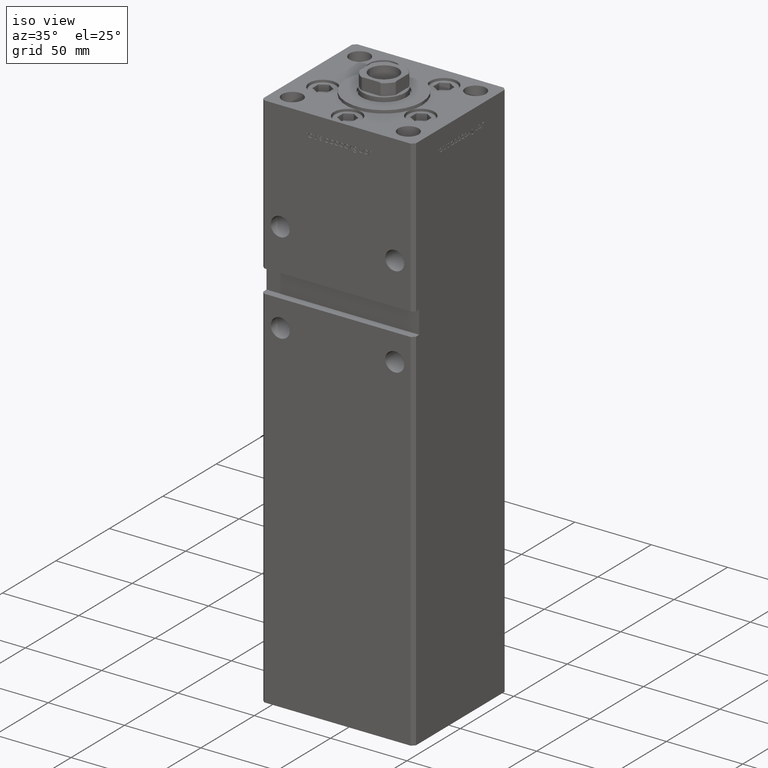
[diagram: clean part render]
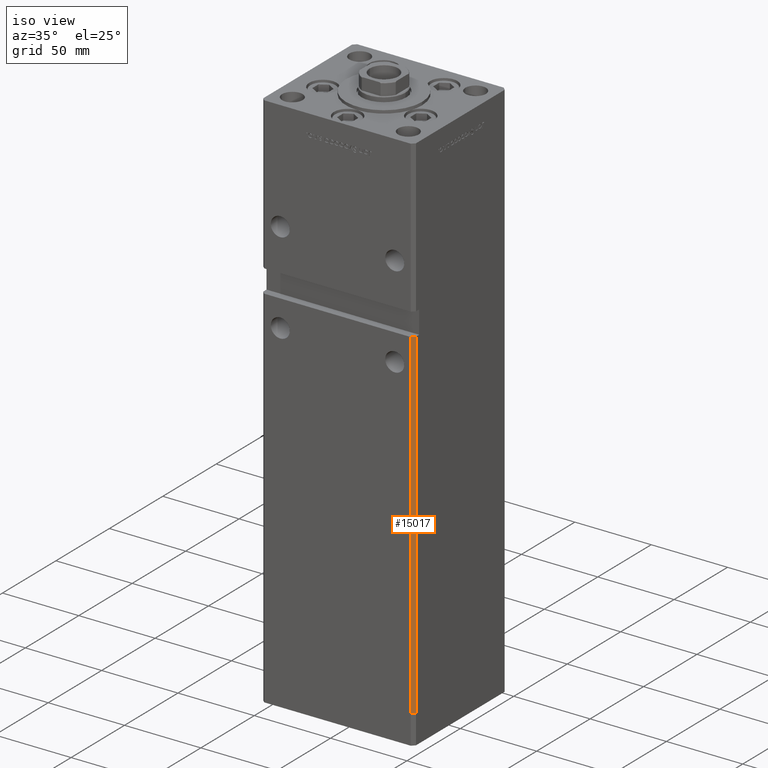
[diagram: same view with one face highlighted and labeled with its STEP entity id]
A machine part, iso view. The second image highlights one B-rep face of the part: STEP entity #15017.
In plain terms, the highlighted planar face has unit normal (0.7071, -0.7071, 0).
Its self-contained STEP definition (entity closure, byte-faithful):
#577 = LINE ( 'NONE', #25080, #8520 ) ;
#666 = DIRECTION ( 'NONE',  ( -0.7071067811865474617, -0.7071067811865474617, 0.000000000000000000 ) ) ;
#1453 = DIRECTION ( 'NONE',  ( 0.7071067811865475727, -0.7071067811865475727, 0.000000000000000000 ) ) ;
#2584 = ORIENTED_EDGE ( 'NONE', *, *, #40795, .F. ) ;
#3902 = EDGE_CURVE ( 'NONE', #37394, #42736, #28679, .T. ) ;
#6145 = LINE ( 'NONE', #44768, #36188 ) ;
#7749 = VERTEX_POINT ( 'NONE', #29216 ) ;
#8520 = VECTOR ( 'NONE', #45475, 1000.000000000000114 ) ;
#8661 = CARTESIAN_POINT ( 'NONE',  ( 49.99999999999998579, -41.49999999999999289, 0.000000000000000000 ) ) ;
#9748 = VECTOR ( 'NONE', #19571, 1000.000000000000000 ) ;
#9784 = PLANE ( 'NONE',  #16134 ) ;
#10048 = FACE_OUTER_BOUND ( 'NONE', #16759, .T. ) ;
#15017 = ADVANCED_FACE ( 'NONE', ( #10048 ), #9784, .T. ) ;
#16134 = AXIS2_PLACEMENT_3D ( 'NONE', #46066, #1453, #29710 ) ;
#16759 = EDGE_LOOP ( 'NONE', ( #23802, #28380, #49755, #2584 ) ) ;
#19571 = DIRECTION ( 'NONE',  ( -0.000000000000000000, -0.000000000000000000, -1.000000000000000000 ) ) ;
#23802 = ORIENTED_EDGE ( 'NONE', *, *, #24872, .F. ) ;
#24872 = EDGE_CURVE ( 'NONE', #7749, #38862, #577, .T. ) ;
#25080 = CARTESIAN_POINT ( 'NONE',  ( 49.99999999999998579, -41.49999999999999289, 223.0000000000000000 ) ) ;
#28380 = ORIENTED_EDGE ( 'NONE', *, *, #34903, .T. ) ;
#28679 = LINE ( 'NONE', #37516, #43632 ) ;
#29216 = CARTESIAN_POINT ( 'NONE',  ( 47.99999999999998579, -43.50000000000000000, 223.0000000000000000 ) ) ;
#29710 = DIRECTION ( 'NONE',  ( 0.7071067811865474617, 0.7071067811865474617, 0.000000000000000000 ) ) ;
#31900 = DIRECTION ( 'NONE',  ( -0.000000000000000000, -0.000000000000000000, -1.000000000000000000 ) ) ;
#34903 = EDGE_CURVE ( 'NONE', #7749, #42736, #6145, .T. ) ;
#36188 = VECTOR ( 'NONE', #31900, 1000.000000000000000 ) ;
#36500 = LINE ( 'NONE', #53132, #9748 ) ;
#37394 = VERTEX_POINT ( 'NONE', #8661 ) ;
#37516 = CARTESIAN_POINT ( 'NONE',  ( 49.99999999999998579, -41.49999999999999289, 0.000000000000000000 ) ) ;
#38862 = VERTEX_POINT ( 'NONE', #43683 ) ;
#40795 = EDGE_CURVE ( 'NONE', #38862, #37394, #36500, .T. ) ;
#42736 = VERTEX_POINT ( 'NONE', #46557 ) ;
#43632 = VECTOR ( 'NONE', #666, 1000.000000000000114 ) ;
#43683 = CARTESIAN_POINT ( 'NONE',  ( 49.99999999999999289, -41.49999999999999289, 223.0000000000000000 ) ) ;
#44768 = CARTESIAN_POINT ( 'NONE',  ( 47.99999999999998579, -43.50000000000000000, 318.5000000000000000 ) ) ;
#45475 = DIRECTION ( 'NONE',  ( 0.7071067811865474617, 0.7071067811865474617, 0.000000000000000000 ) ) ;
#46066 = CARTESIAN_POINT ( 'NONE',  ( 49.99999999999998579, -41.49999999999999289, 318.5000000000000000 ) ) ;
#46557 = CARTESIAN_POINT ( 'NONE',  ( 47.99999999999998579, -43.50000000000000000, 0.000000000000000000 ) ) ;
#49755 = ORIENTED_EDGE ( 'NONE', *, *, #3902, .F. ) ;
#53132 = CARTESIAN_POINT ( 'NONE',  ( 49.99999999999998579, -41.49999999999999289, 318.5000000000000000 ) ) ;